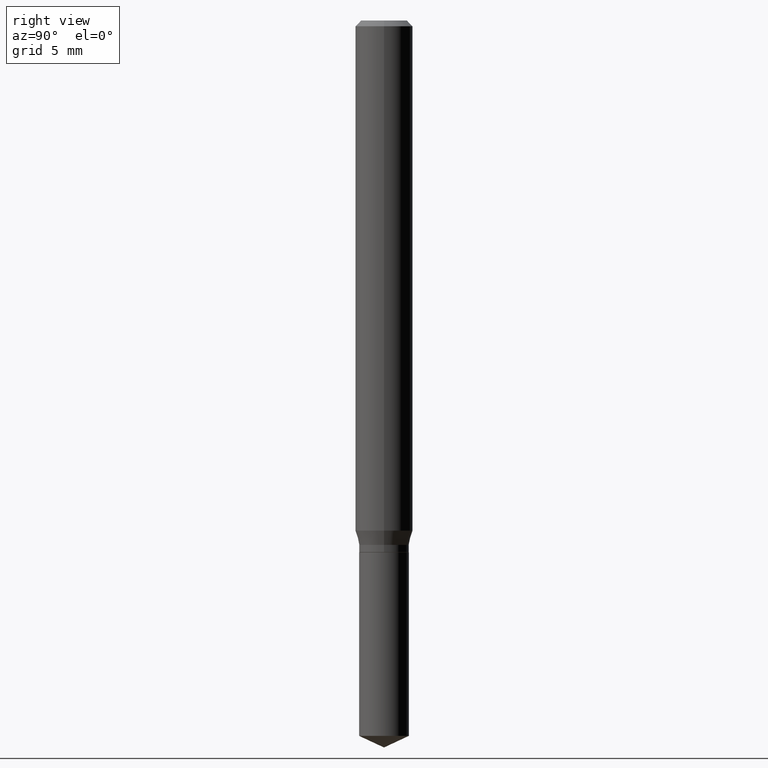
[diagram: clean part render]
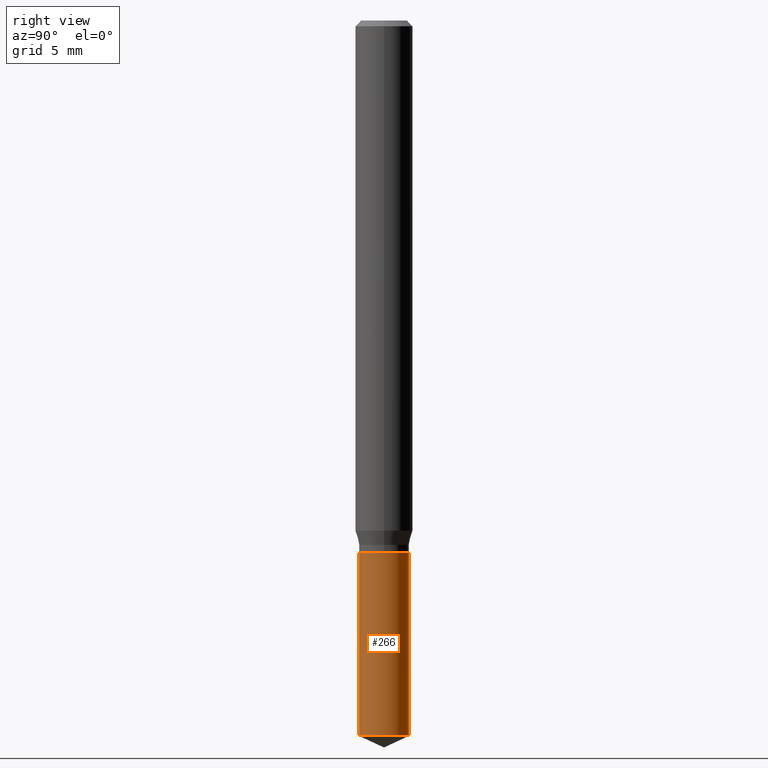
[diagram: same view with one face highlighted and labeled with its STEP entity id]
A machine part, right view. The second image highlights one B-rep face of the part: STEP entity #266.
In plain terms, the highlighted cylindrical surface (edge-blend (fillet) strip) has radius 1.3005 mm, axis along (-0, 0, 1).
Its self-contained STEP definition (entity closure, byte-faithful):
#1 = AXIS2_PLACEMENT_3D ( 'NONE', #146, #406, #62 ) ;
#6 = CARTESIAN_POINT ( 'NONE',  ( 3.637978807092073044E-16, 0.05119999999999617912, -1.094500000000000028 ) ) ;
#24 = LINE ( 'NONE', #335, #293 ) ;
#62 = DIRECTION ( 'NONE',  ( -6.982962677686265133E-15, -1.000000000000000000, 2.667820306312756424E-15 ) ) ;
#65 = DIRECTION ( 'NONE',  ( -2.445358326776455790E-29, 3.491639551644474585E-15, 1.000000000000000000 ) ) ;
#67 = CARTESIAN_POINT ( 'NONE',  ( 3.600238699489957848E-29, -5.140306042266869931E-15, -1.472225047902464112 ) ) ;
#78 = CARTESIAN_POINT ( 'NONE',  ( -3.575276890975101258E-16, -0.05120000000000383272, -1.094499999999999806 ) ) ;
#112 = ORIENTED_EDGE ( 'NONE', *, *, #131, .T. ) ;
#116 = FACE_OUTER_BOUND ( 'NONE', #295, .T. ) ;
#131 = EDGE_CURVE ( 'NONE', #271, #159, #192, .T. ) ;
#134 = AXIS2_PLACEMENT_3D ( 'NONE', #67, #338, #291 ) ;
#146 = CARTESIAN_POINT ( 'NONE',  ( 2.676565608369631794E-29, -3.821426325363822773E-15, -1.094499999999999806 ) ) ;
#159 = VERTEX_POINT ( 'NONE', #252 ) ;
#167 = EDGE_CURVE ( 'NONE', #159, #449, #24, .T. ) ;
#174 = EDGE_CURVE ( 'NONE', #194, #449, #330, .T. ) ;
#192 = CIRCLE ( 'NONE', #134, 0.05120000000000000939 ) ;
#194 = VERTEX_POINT ( 'NONE', #472 ) ;
#197 = CYLINDRICAL_SURFACE ( 'NONE', #434, 0.05120000000000000939 ) ;
#234 = VECTOR ( 'NONE', #235, 39.37007874015748143 ) ;
#235 = DIRECTION ( 'NONE',  ( -2.445358326776455790E-29, 3.491639551644474585E-15, 1.000000000000000000 ) ) ;
#252 = CARTESIAN_POINT ( 'NONE',  ( 3.637978807092074523E-16, 0.05119999999999487461, -1.472225047902464334 ) ) ;
#266 = ADVANCED_FACE ( 'NONE', ( #116 ), #197, .T. ) ;
#269 = DIRECTION ( 'NONE',  ( -6.982962677686265133E-15, -1.000000000000000000, 2.667820306312756424E-15 ) ) ;
#271 = VERTEX_POINT ( 'NONE', #279 ) ;
#272 = CARTESIAN_POINT ( 'NONE',  ( 2.676565608369631794E-29, -3.821426325363822773E-15, -1.094499999999999806 ) ) ;
#279 = CARTESIAN_POINT ( 'NONE',  ( -3.575276890975009060E-16, -0.05120000000000516499, -1.472225047902463890 ) ) ;
#291 = DIRECTION ( 'NONE',  ( -6.982962677686265133E-15, -1.000000000000000000, 5.335640612625512847E-15 ) ) ;
#293 = VECTOR ( 'NONE', #65, 39.37007874015748143 ) ;
#295 = EDGE_LOOP ( 'NONE', ( #112, #345, #485, #490 ) ) ;
#330 = CIRCLE ( 'NONE', #1, 0.05120000000000000939 ) ;
#335 = CARTESIAN_POINT ( 'NONE',  ( 3.637978807091980353E-16, 0.05119999999999617912, -1.094500000000000028 ) ) ;
#338 = DIRECTION ( 'NONE',  ( -2.445358326776455510E-29, 3.491639551644474585E-15, 1.000000000000000000 ) ) ;
#345 = ORIENTED_EDGE ( 'NONE', *, *, #167, .T. ) ;
#406 = DIRECTION ( 'NONE',  ( -2.445358326776455510E-29, 3.491639551644474585E-15, 1.000000000000000000 ) ) ;
#427 = LINE ( 'NONE', #78, #234 ) ;
#434 = AXIS2_PLACEMENT_3D ( 'NONE', #272, #451, #269 ) ;
#449 = VERTEX_POINT ( 'NONE', #6 ) ;
#451 = DIRECTION ( 'NONE',  ( -2.445358326776455510E-29, 3.491639551644474585E-15, 1.000000000000000000 ) ) ;
#455 = EDGE_CURVE ( 'NONE', #271, #194, #427, .T. ) ;
#472 = CARTESIAN_POINT ( 'NONE',  ( -3.575276890975101258E-16, -0.05120000000000383272, -1.094499999999999806 ) ) ;
#485 = ORIENTED_EDGE ( 'NONE', *, *, #174, .F. ) ;
#490 = ORIENTED_EDGE ( 'NONE', *, *, #455, .F. ) ;